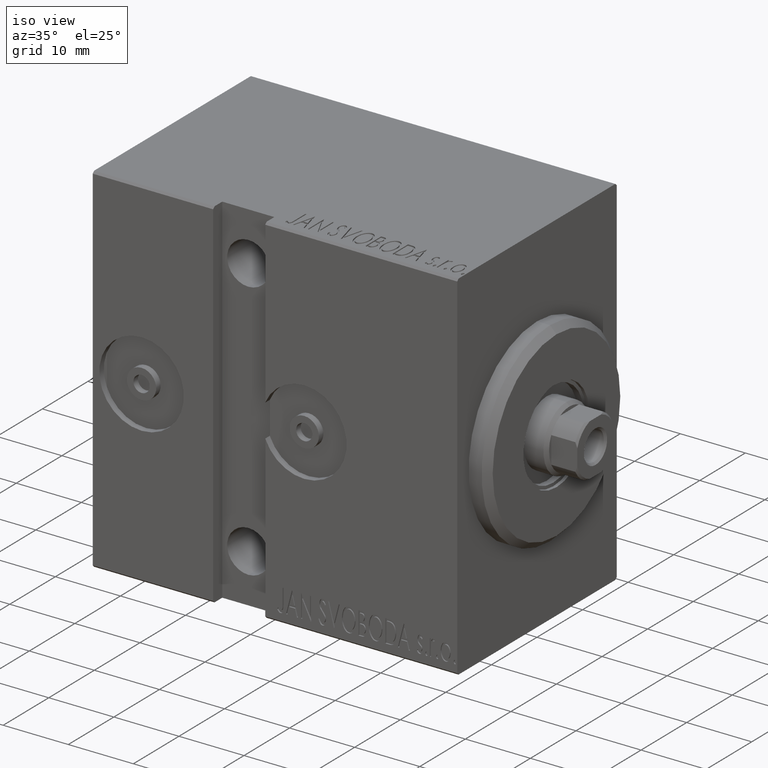
[diagram: clean part render]
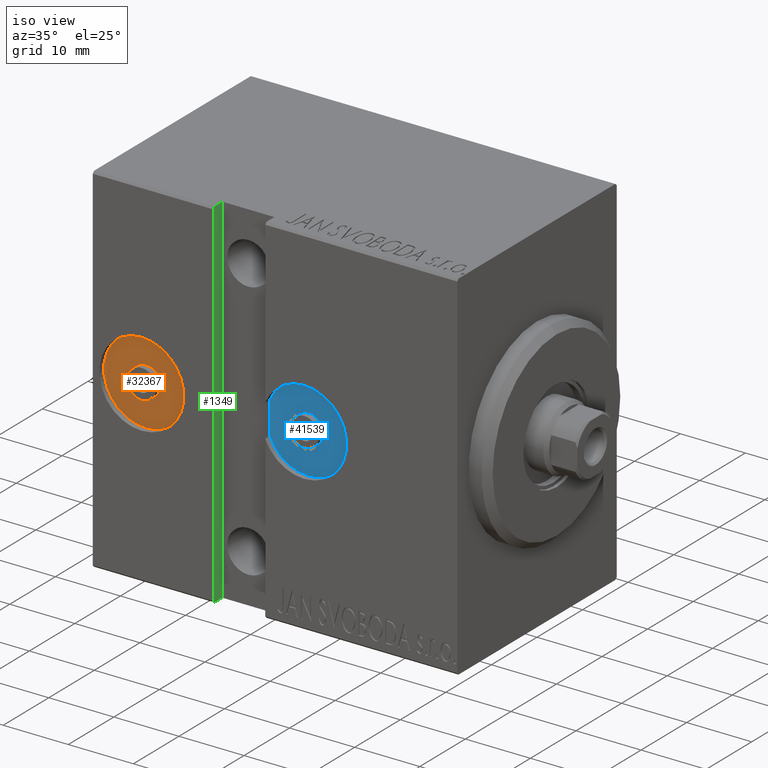
[diagram: same view with three faces highlighted in distinct colors, each labeled with its STEP entity id]
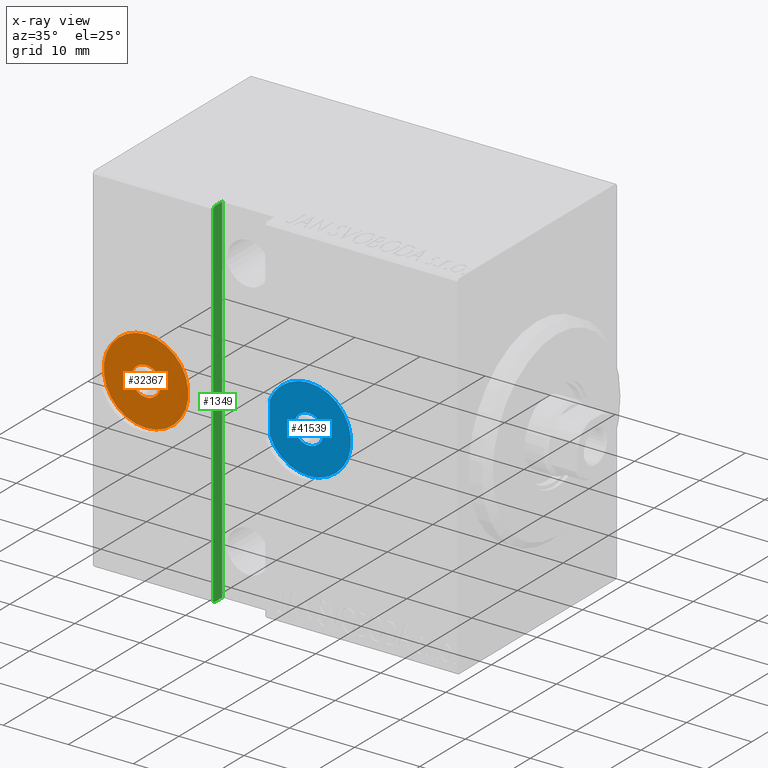
[diagram: x-ray of the same camera — body ghosted, the three highlighted faces saturated]
A machine part, iso view with three faces highlighted in distinct colors.
The next image is the same camera in x-ray (body ghosted, the three faces saturated) — at least one of them is partly hidden behind the body in this view.
Their STEP definitions:

[orange] entity #32367 — the highlighted planar face has unit normal (-0, -1, 0).
#4710 = AXIS2_PLACEMENT_3D ( 'NONE', #17856, #27866, #7225 ) ;
#5067 = EDGE_CURVE ( 'NONE', #17297, #36629, #41214, .T. ) ;
#5397 = FACE_OUTER_BOUND ( 'NONE', #40174, .T. ) ;
#5511 = EDGE_CURVE ( 'NONE', #31950, #42709, #27315, .T. ) ;
#7035 = DIRECTION ( 'NONE',  ( 0.000000000000000000, 0.000000000000000000, 1.000000000000000000 ) ) ;
#7225 = DIRECTION ( 'NONE',  ( 0.000000000000000000, 0.000000000000000000, 1.000000000000000000 ) ) ;
#9211 = CARTESIAN_POINT ( 'NONE',  ( 48.50000000000000000, 16.50000000000000000, 2.081668171172168119E-15 ) ) ;
#9403 = CIRCLE ( 'NONE', #33707, 2.250000000000002220 ) ;
#10977 = ORIENTED_EDGE ( 'NONE', *, *, #5067, .T. ) ;
#11322 = EDGE_CURVE ( 'NONE', #42709, #31950, #9403, .T. ) ;
#11368 = DIRECTION ( 'NONE',  ( 1.848892746611746419E-32, 1.000000000000000000, 1.105614492169230117E-16 ) ) ;
#13124 = CARTESIAN_POINT ( 'NONE',  ( 48.50000000000000000, 16.50000000000000000, -6.499999999999999112 ) ) ;
#13130 = EDGE_LOOP ( 'NONE', ( #35814, #21314 ) ) ;
#13464 = CARTESIAN_POINT ( 'NONE',  ( 48.50000000000000000, 16.50000000000000000, 2.250000000000004441 ) ) ;
#13697 = CARTESIAN_POINT ( 'NONE',  ( 48.50000000000000000, 16.50000000000000000, -2.250000000000000444 ) ) ;
#15349 = CARTESIAN_POINT ( 'NONE',  ( 3.235562306570556671E-31, 16.50000000000000000, 1.808663653952385047E-15 ) ) ;
#15939 = DIRECTION ( 'NONE',  ( 1.848892746611746419E-32, 1.000000000000000000, 1.105614492169230117E-16 ) ) ;
#16187 = AXIS2_PLACEMENT_3D ( 'NONE', #28619, #42522, #41887 ) ;
#17297 = VERTEX_POINT ( 'NONE', #13124 ) ;
#17856 = CARTESIAN_POINT ( 'NONE',  ( 48.50000000000000000, 16.50000000000000000, 2.081668171172168119E-15 ) ) ;
#18619 = PLANE ( 'NONE',  #24359 ) ;
#21314 = ORIENTED_EDGE ( 'NONE', *, *, #11322, .F. ) ;
#24359 = AXIS2_PLACEMENT_3D ( 'NONE', #15349, #41891, #31892 ) ;
#24600 = CARTESIAN_POINT ( 'NONE',  ( 48.50000000000000000, 16.50000000000000000, 6.500000000000002665 ) ) ;
#25239 = AXIS2_PLACEMENT_3D ( 'NONE', #41164, #11368, #7035 ) ;
#27315 = CIRCLE ( 'NONE', #25239, 2.250000000000002220 ) ;
#27866 = DIRECTION ( 'NONE',  ( 1.848892746611746419E-32, 1.000000000000000000, 1.105614492169230117E-16 ) ) ;
#27987 = FACE_BOUND ( 'NONE', #13130, .T. ) ;
#28619 = CARTESIAN_POINT ( 'NONE',  ( 48.50000000000000000, 16.50000000000000000, 2.081668171172168119E-15 ) ) ;
#31892 = DIRECTION ( 'NONE',  ( 0.000000000000000000, -1.105614492169230117E-16, 1.000000000000000000 ) ) ;
#31950 = VERTEX_POINT ( 'NONE', #13464 ) ;
#32367 = ADVANCED_FACE ( 'NONE', ( #27987, #5397 ), #18619, .T. ) ;
#33707 = AXIS2_PLACEMENT_3D ( 'NONE', #9211, #15939, #35732 ) ;
#34532 = ORIENTED_EDGE ( 'NONE', *, *, #39645, .T. ) ;
#35732 = DIRECTION ( 'NONE',  ( 0.000000000000000000, 0.000000000000000000, 1.000000000000000000 ) ) ;
#35814 = ORIENTED_EDGE ( 'NONE', *, *, #5511, .F. ) ;
#36629 = VERTEX_POINT ( 'NONE', #24600 ) ;
#38687 = CIRCLE ( 'NONE', #4710, 6.500000000000000888 ) ;
#39645 = EDGE_CURVE ( 'NONE', #36629, #17297, #38687, .T. ) ;
#40174 = EDGE_LOOP ( 'NONE', ( #34532, #10977 ) ) ;
#41164 = CARTESIAN_POINT ( 'NONE',  ( 48.50000000000000000, 16.50000000000000000, 2.081668171172168119E-15 ) ) ;
#41214 = CIRCLE ( 'NONE', #16187, 6.500000000000000888 ) ;
#41887 = DIRECTION ( 'NONE',  ( 0.000000000000000000, 0.000000000000000000, 1.000000000000000000 ) ) ;
#41891 = DIRECTION ( 'NONE',  ( 1.848892746611746419E-32, 1.000000000000000000, 1.105614492169230117E-16 ) ) ;
#42522 = DIRECTION ( 'NONE',  ( 1.848892746611746419E-32, 1.000000000000000000, 1.105614492169230117E-16 ) ) ;
#42709 = VERTEX_POINT ( 'NONE', #13697 ) ;

[blue] entity #41539 — the highlighted planar face has unit normal (-0, -1, 0).
#365 = EDGE_LOOP ( 'NONE', ( #10917, #35344, #39672, #26852 ) ) ;
#1462 = VERTEX_POINT ( 'NONE', #27576 ) ;
#1587 = CARTESIAN_POINT ( 'NONE',  ( 23.50000000000000355, 16.50000000000000000, 6.500000000000000000 ) ) ;
#3234 = DIRECTION ( 'NONE',  ( 0.000000000000000000, 0.000000000000000000, 1.000000000000000000 ) ) ;
#3460 = CARTESIAN_POINT ( 'NONE',  ( 23.50000000000000355, 16.50000000000000000, 2.250000000000001332 ) ) ;
#3955 = CIRCLE ( 'NONE', #5372, 6.499999999999998224 ) ;
#4634 = DIRECTION ( 'NONE',  ( -1.261617073437677259E-16, 1.105614492169230117E-16, -1.000000000000000000 ) ) ;
#5124 = ORIENTED_EDGE ( 'NONE', *, *, #17548, .F. ) ;
#5338 = CARTESIAN_POINT ( 'NONE',  ( 3.235562306570556671E-31, 16.50000000000000000, 1.808663653952385047E-15 ) ) ;
#5372 = AXIS2_PLACEMENT_3D ( 'NONE', #29882, #36617, #36395 ) ;
#5753 = DIRECTION ( 'NONE',  ( 1.848892746611746419E-32, 1.000000000000000000, 1.105614492169230117E-16 ) ) ;
#7599 = VERTEX_POINT ( 'NONE', #3460 ) ;
#8038 = AXIS2_PLACEMENT_3D ( 'NONE', #10166, #23424, #3234 ) ;
#8137 = CARTESIAN_POINT ( 'NONE',  ( 23.50000000000000355, 16.50000000000000000, 2.081668171172168119E-15 ) ) ;
#8498 = VERTEX_POINT ( 'NONE', #27144 ) ;
#8577 = FACE_BOUND ( 'NONE', #14722, .T. ) ;
#8982 = DIRECTION ( 'NONE',  ( 1.848892746611746419E-32, 1.000000000000000000, 1.105614492169230117E-16 ) ) ;
#9049 = VECTOR ( 'NONE', #4634, 1000.000000000000000 ) ;
#10166 = CARTESIAN_POINT ( 'NONE',  ( 23.50000000000000355, 16.50000000000000000, 2.081668171172168119E-15 ) ) ;
#10256 = DIRECTION ( 'NONE',  ( 0.000000000000000000, 0.000000000000000000, 1.000000000000000000 ) ) ;
#10832 = EDGE_CURVE ( 'NONE', #7599, #18573, #35783, .T. ) ;
#10880 = AXIS2_PLACEMENT_3D ( 'NONE', #8137, #24426, #17898 ) ;
#10917 = ORIENTED_EDGE ( 'NONE', *, *, #30254, .T. ) ;
#10935 = AXIS2_PLACEMENT_3D ( 'NONE', #15485, #8982, #22229 ) ;
#11626 = FACE_OUTER_BOUND ( 'NONE', #365, .T. ) ;
#14722 = EDGE_LOOP ( 'NONE', ( #34487, #5124 ) ) ;
#15485 = CARTESIAN_POINT ( 'NONE',  ( 23.50000000000000355, 16.50000000000000000, 2.081668171172168119E-15 ) ) ;
#16036 = CIRCLE ( 'NONE', #41737, 6.499999999999998224 ) ;
#17548 = EDGE_CURVE ( 'NONE', #18573, #7599, #37247, .T. ) ;
#17898 = DIRECTION ( 'NONE',  ( 0.000000000000000000, 0.000000000000000000, 1.000000000000000000 ) ) ;
#18573 = VERTEX_POINT ( 'NONE', #33142 ) ;
#19219 = EDGE_CURVE ( 'NONE', #8498, #39783, #3955, .T. ) ;
#19383 = CARTESIAN_POINT ( 'NONE',  ( 23.50000000000000355, 16.50000000000000000, 2.081668171172168119E-15 ) ) ;
#20649 = VERTEX_POINT ( 'NONE', #32423 ) ;
#21338 = LINE ( 'NONE', #34405, #9049 ) ;
#22229 = DIRECTION ( 'NONE',  ( 0.000000000000000000, 0.000000000000000000, 1.000000000000000000 ) ) ;
#22450 = DIRECTION ( 'NONE',  ( 0.000000000000000000, -1.105614492169230117E-16, 1.000000000000000000 ) ) ;
#22864 = DIRECTION ( 'NONE',  ( 1.848892746611746419E-32, 1.000000000000000000, 1.105614492169230117E-16 ) ) ;
#23424 = DIRECTION ( 'NONE',  ( 1.848892746611746419E-32, 1.000000000000000000, 1.105614492169230117E-16 ) ) ;
#24426 = DIRECTION ( 'NONE',  ( 1.848892746611746419E-32, 1.000000000000000000, 1.105614492169230117E-16 ) ) ;
#26852 = ORIENTED_EDGE ( 'NONE', *, *, #39488, .T. ) ;
#27144 = CARTESIAN_POINT ( 'NONE',  ( 23.50000000000000355, 16.50000000000000000, -6.499999999999997335 ) ) ;
#27576 = CARTESIAN_POINT ( 'NONE',  ( 29.50000000000000355, 16.50000000000000000, -2.499999999999997780 ) ) ;
#27756 = EDGE_CURVE ( 'NONE', #1462, #8498, #16036, .T. ) ;
#28776 = PLANE ( 'NONE',  #34578 ) ;
#29882 = CARTESIAN_POINT ( 'NONE',  ( 23.50000000000000355, 16.50000000000000000, 2.081668171172168119E-15 ) ) ;
#30254 = EDGE_CURVE ( 'NONE', #20649, #1462, #21338, .T. ) ;
#32423 = CARTESIAN_POINT ( 'NONE',  ( 29.50000000000000355, 16.50000000000000000, 2.500000000000000444 ) ) ;
#33142 = CARTESIAN_POINT ( 'NONE',  ( 23.50000000000000355, 16.50000000000000000, -2.249999999999996891 ) ) ;
#34405 = CARTESIAN_POINT ( 'NONE',  ( 29.50000000000000000, 16.50000000000000355, -27.50000000000000711 ) ) ;
#34487 = ORIENTED_EDGE ( 'NONE', *, *, #10832, .F. ) ;
#34578 = AXIS2_PLACEMENT_3D ( 'NONE', #5338, #5753, #22450 ) ;
#35344 = ORIENTED_EDGE ( 'NONE', *, *, #27756, .T. ) ;
#35783 = CIRCLE ( 'NONE', #8038, 2.249999999999999112 ) ;
#35927 = CIRCLE ( 'NONE', #10935, 6.499999999999998224 ) ;
#36395 = DIRECTION ( 'NONE',  ( 0.000000000000000000, 0.000000000000000000, 1.000000000000000000 ) ) ;
#36617 = DIRECTION ( 'NONE',  ( 1.848892746611746419E-32, 1.000000000000000000, 1.105614492169230117E-16 ) ) ;
#37247 = CIRCLE ( 'NONE', #10880, 2.249999999999999112 ) ;
#39488 = EDGE_CURVE ( 'NONE', #39783, #20649, #35927, .T. ) ;
#39672 = ORIENTED_EDGE ( 'NONE', *, *, #19219, .T. ) ;
#39783 = VERTEX_POINT ( 'NONE', #1587 ) ;
#41539 = ADVANCED_FACE ( 'NONE', ( #8577, #11626 ), #28776, .T. ) ;
#41737 = AXIS2_PLACEMENT_3D ( 'NONE', #19383, #22864, #10256 ) ;

[green] entity #1349 — the highlighted planar face has unit normal (-1, 0, -0).
#794 = DIRECTION ( 'NONE',  ( -8.920979878885031324E-17, 0.7071067811865515695, -0.7071067811865435759 ) ) ;
#1349 = ADVANCED_FACE ( 'NONE', ( #9533 ), #36694, .F. ) ;
#1999 = VERTEX_POINT ( 'NONE', #22690 ) ;
#2859 = CARTESIAN_POINT ( 'NONE',  ( 37.49999999999999289, 17.20000000000000284, -27.50000000000000711 ) ) ;
#3800 = VECTOR ( 'NONE', #25518, 1000.000000000000000 ) ;
#4266 = VECTOR ( 'NONE', #37945, 1000.000000000000000 ) ;
#4321 = EDGE_CURVE ( 'NONE', #6954, #26847, #7739, .T. ) ;
#5211 = ORIENTED_EDGE ( 'NONE', *, *, #4321, .T. ) ;
#6294 = CARTESIAN_POINT ( 'NONE',  ( 37.49999999999999289, 15.50000000000000178, -27.50000000000000711 ) ) ;
#6399 = LINE ( 'NONE', #22463, #3800 ) ;
#6954 = VERTEX_POINT ( 'NONE', #27902 ) ;
#7261 = EDGE_CURVE ( 'NONE', #1999, #37987, #12634, .T. ) ;
#7739 = LINE ( 'NONE', #20965, #26595 ) ;
#9232 = CARTESIAN_POINT ( 'NONE',  ( 37.50000000000000000, 17.50000000000000000, 27.20000000000000639 ) ) ;
#9290 = CARTESIAN_POINT ( 'NONE',  ( 37.50000000000000000, 15.50000000000000178, 27.50000000000002132 ) ) ;
#9533 = FACE_OUTER_BOUND ( 'NONE', #16114, .T. ) ;
#12606 = EDGE_CURVE ( 'NONE', #26847, #30301, #6399, .T. ) ;
#12634 = LINE ( 'NONE', #17614, #19013 ) ;
#14463 = CARTESIAN_POINT ( 'NONE',  ( 37.49999999999999289, 15.50000000000000178, -27.50000000000000711 ) ) ;
#15092 = LINE ( 'NONE', #14463, #4266 ) ;
#16114 = EDGE_LOOP ( 'NONE', ( #42519, #33781, #26760, #22805, #29186, #5211 ) ) ;
#17614 = CARTESIAN_POINT ( 'NONE',  ( 37.49999999999999289, 15.50000000000000178, -27.50000000000000711 ) ) ;
#19013 = VECTOR ( 'NONE', #33497, 1000.000000000000000 ) ;
#19281 = DIRECTION ( 'NONE',  ( -0.000000000000000000, 1.000000000000000000, -0.000000000000000000 ) ) ;
#19726 = DIRECTION ( 'NONE',  ( -1.261617073437677259E-16, 0.000000000000000000, -1.000000000000000000 ) ) ;
#20965 = CARTESIAN_POINT ( 'NONE',  ( 37.50000000000000000, 17.20000000000000284, 27.50000000000000000 ) ) ;
#22341 = LINE ( 'NONE', #25608, #26426 ) ;
#22463 = CARTESIAN_POINT ( 'NONE',  ( 37.49999999999999289, 17.50000000000000000, -27.50000000000000711 ) ) ;
#22690 = CARTESIAN_POINT ( 'NONE',  ( 37.50000000000000000, 15.50000000000000178, 27.50000000000002132 ) ) ;
#22805 = ORIENTED_EDGE ( 'NONE', *, *, #7261, .F. ) ;
#23256 = VERTEX_POINT ( 'NONE', #2859 ) ;
#25518 = DIRECTION ( 'NONE',  ( -1.261617073437677259E-16, -0.000000000000000000, -1.000000000000000000 ) ) ;
#25608 = CARTESIAN_POINT ( 'NONE',  ( 37.49999999999999289, 17.50000000000000355, -27.19999999999999574 ) ) ;
#26426 = VECTOR ( 'NONE', #29088, 1000.000000000000000 ) ;
#26595 = VECTOR ( 'NONE', #794, 999.9999999999998863 ) ;
#26760 = ORIENTED_EDGE ( 'NONE', *, *, #32578, .F. ) ;
#26847 = VERTEX_POINT ( 'NONE', #9232 ) ;
#27873 = CARTESIAN_POINT ( 'NONE',  ( 37.50000000000000000, 15.50000000000000355, -27.50000000000000355 ) ) ;
#27902 = CARTESIAN_POINT ( 'NONE',  ( 37.50000000000000000, 17.20000000000000284, 27.50000000000002132 ) ) ;
#28971 = VECTOR ( 'NONE', #19281, 1000.000000000000000 ) ;
#29088 = DIRECTION ( 'NONE',  ( -8.920979878885184166E-17, -0.7071067811865393571, -0.7071067811865556774 ) ) ;
#29186 = ORIENTED_EDGE ( 'NONE', *, *, #40233, .T. ) ;
#30301 = VERTEX_POINT ( 'NONE', #41574 ) ;
#31463 = EDGE_CURVE ( 'NONE', #30301, #23256, #22341, .T. ) ;
#32578 = EDGE_CURVE ( 'NONE', #37987, #23256, #15092, .T. ) ;
#33497 = DIRECTION ( 'NONE',  ( -1.261617073437677259E-16, -0.000000000000000000, -1.000000000000000000 ) ) ;
#33781 = ORIENTED_EDGE ( 'NONE', *, *, #31463, .T. ) ;
#35573 = AXIS2_PLACEMENT_3D ( 'NONE', #6294, #36260, #19726 ) ;
#36260 = DIRECTION ( 'NONE',  ( 1.000000000000000000, 0.000000000000000000, -1.261617073437677259E-16 ) ) ;
#36694 = PLANE ( 'NONE',  #35573 ) ;
#37945 = DIRECTION ( 'NONE',  ( -0.000000000000000000, 1.000000000000000000, -0.000000000000000000 ) ) ;
#37987 = VERTEX_POINT ( 'NONE', #27873 ) ;
#39081 = LINE ( 'NONE', #9290, #28971 ) ;
#40233 = EDGE_CURVE ( 'NONE', #1999, #6954, #39081, .T. ) ;
#41574 = CARTESIAN_POINT ( 'NONE',  ( 37.49999999999999289, 17.50000000000000000, -27.19999999999999574 ) ) ;
#42519 = ORIENTED_EDGE ( 'NONE', *, *, #12606, .T. ) ;